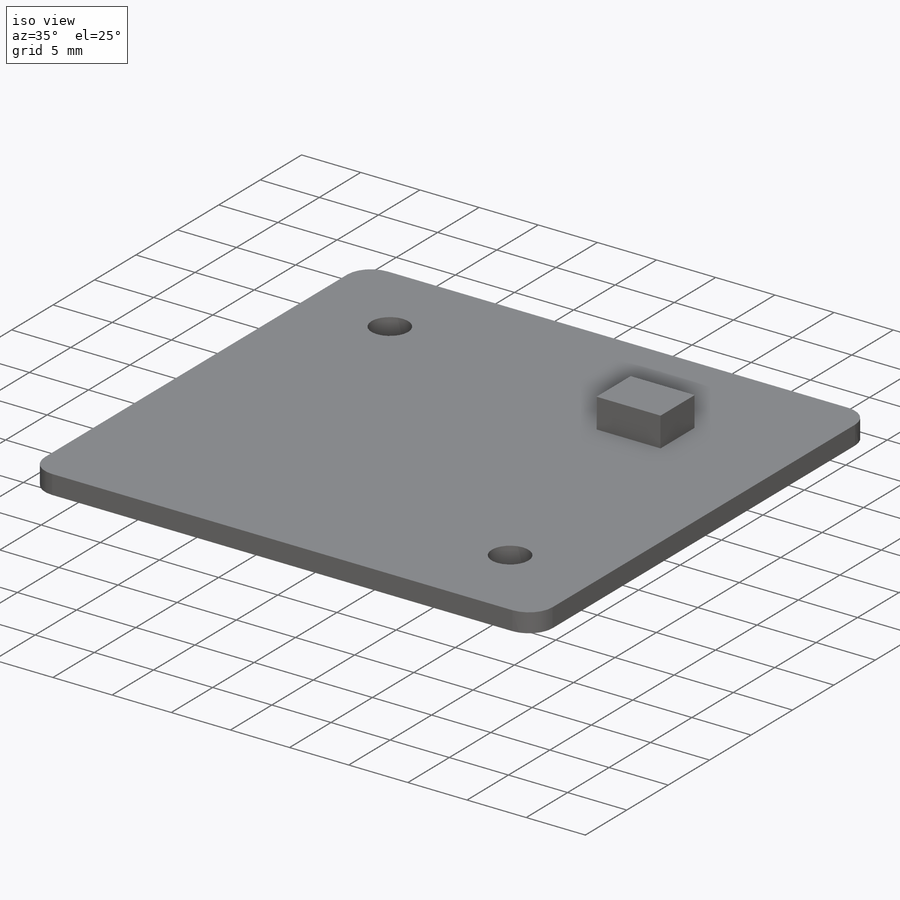
[diagram: iso view]
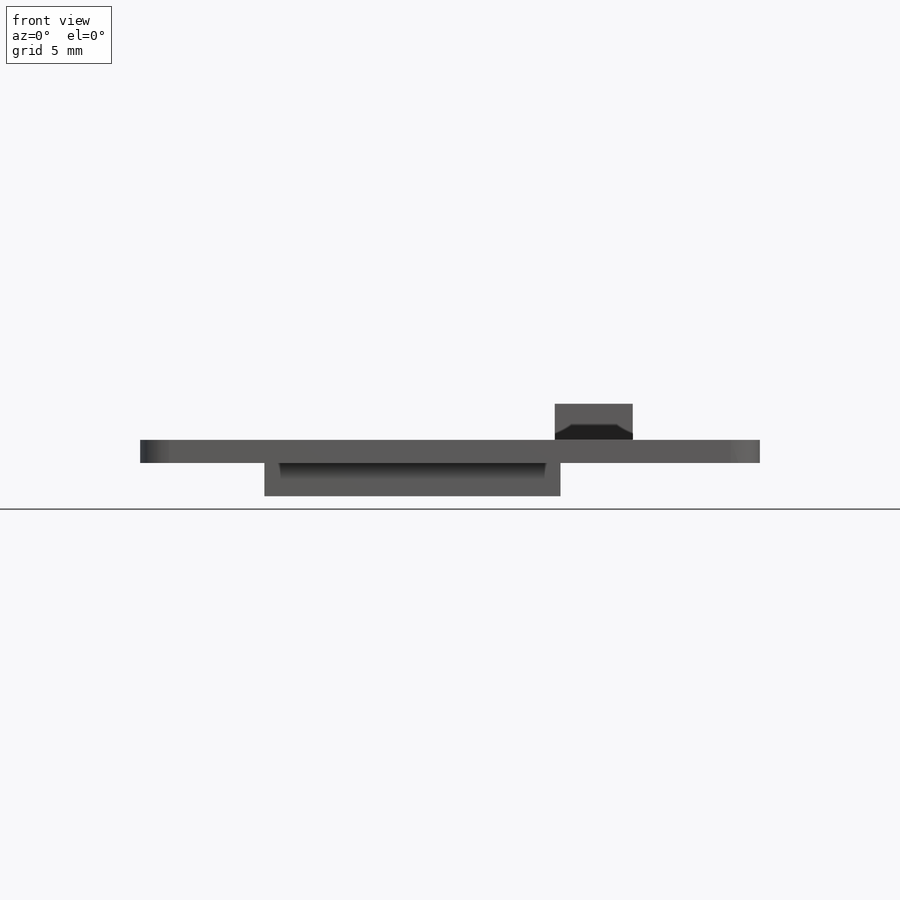
[diagram: front view]
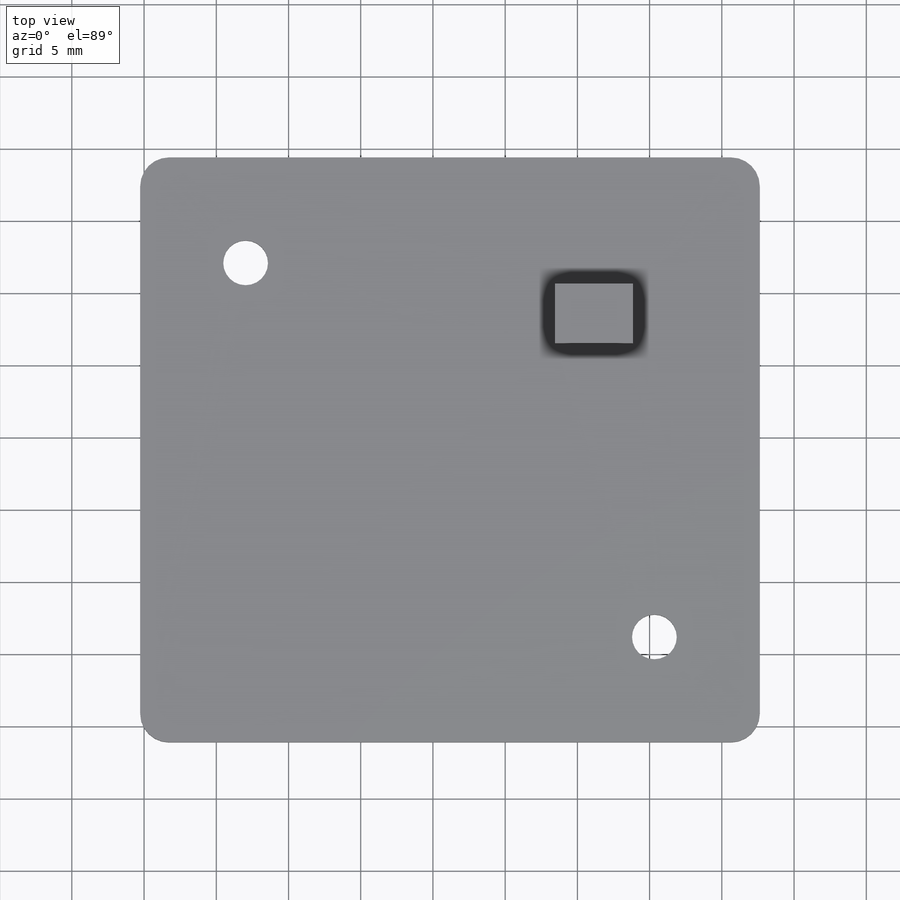
[diagram: top view]
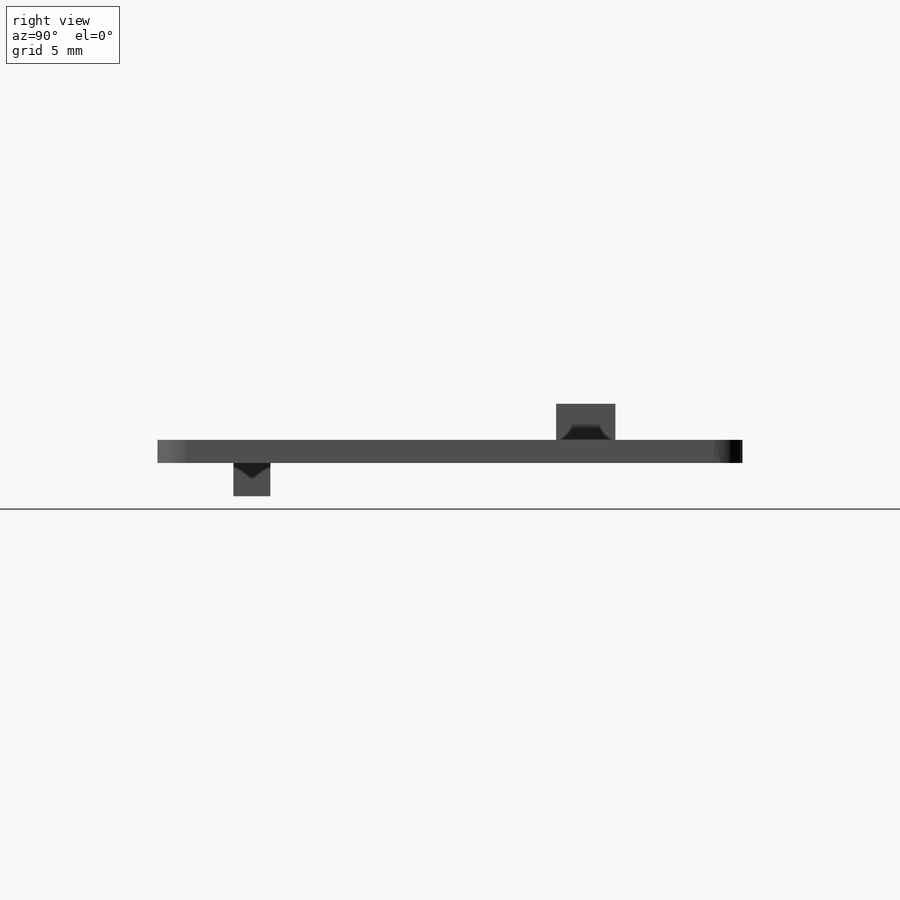
[diagram: right view]
SOLIDWORKS PART (.sldprt)
format: sldprt  version: not decoded by parser v0  size: 172,032 bytes
history: native  units: mm
features: sketch x3, extrude x3, material x1, fillet x1 (+12 scaffold rows collapsed)
feature tree (20):
  scaffold x12  (default folders/planes/origin — collapsed)
  material  "Material <not specified>"
  sketch  "Sketch1"  dims[c1.D3=~3.333506mm c1.D7=3.1mm c1.D1=~67.039332mm c1.D2=~65.617286mm c2.D1=42.9mm c2.D2=40.5mm c2.D3=7.3mm c2.D4=7.3mm c2.D5=7.3mm c2.D6=7.3mm]
  extrude  "Boss-Extrude1"  Depth=1.6mm
  fillet  "Fillet1"  Radius=2mm
  sketch  "Sketch2"  dims[c1.D1=~4.068012mm c1.D2=~5.917108mm c2.D1=5.4mm c2.D2=4.1mm c2.D3=8.8mm c2.D4=8.8mm]
  extrude  "Boss-Extrude2"  Depth=2.5mm
  sketch  "Sketch3"  dims[c1.D1=~2.333716mm c1.D2=~20.231019mm c2.D1=20.5mm c2.D2=2.56mm c2.D3=5.25mm c2.D4=13.8mm]
  extrude  "Boss-Extrude3"  Depth=2.3mm
decode coverage: 7 of 7 modeling features carry decoded parameters
note: ~ marks probable driven/reference dimensions
note: suppression state not decoded; provenance and decode notes live in map.json
